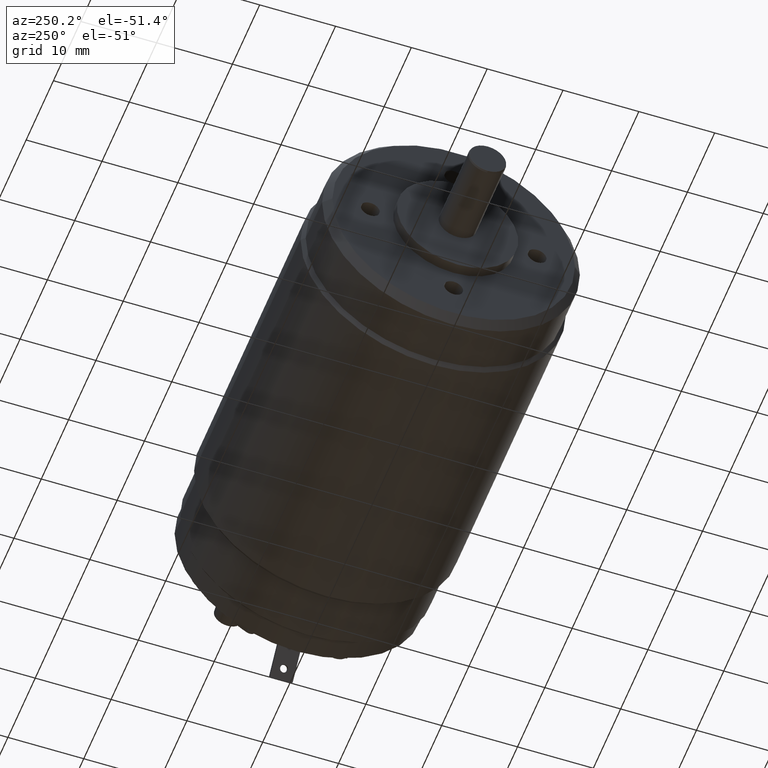
[diagram: clean part render]
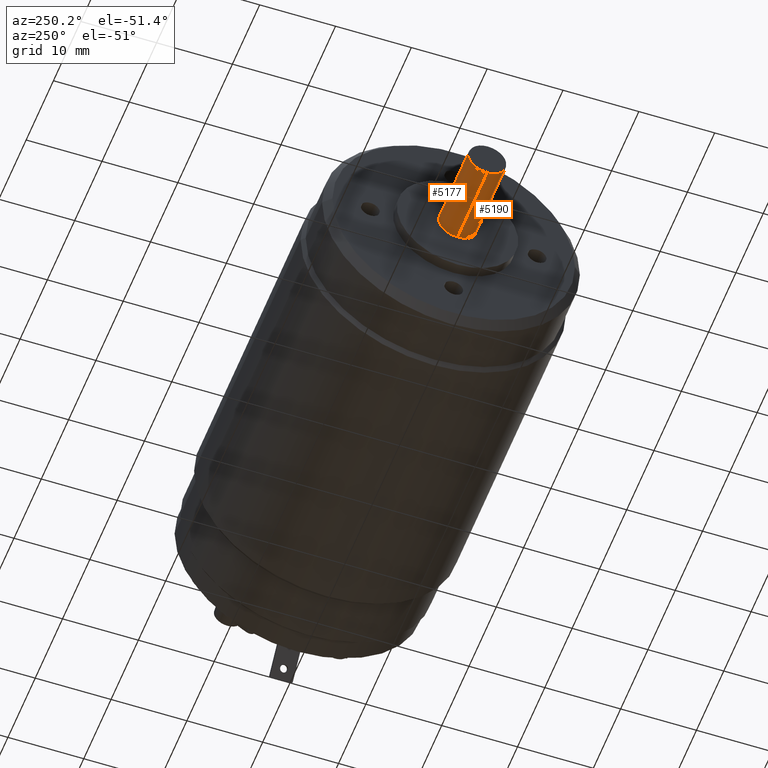
[diagram: same view with one multi-face feature highlighted, each face labeled with its STEP entity id]
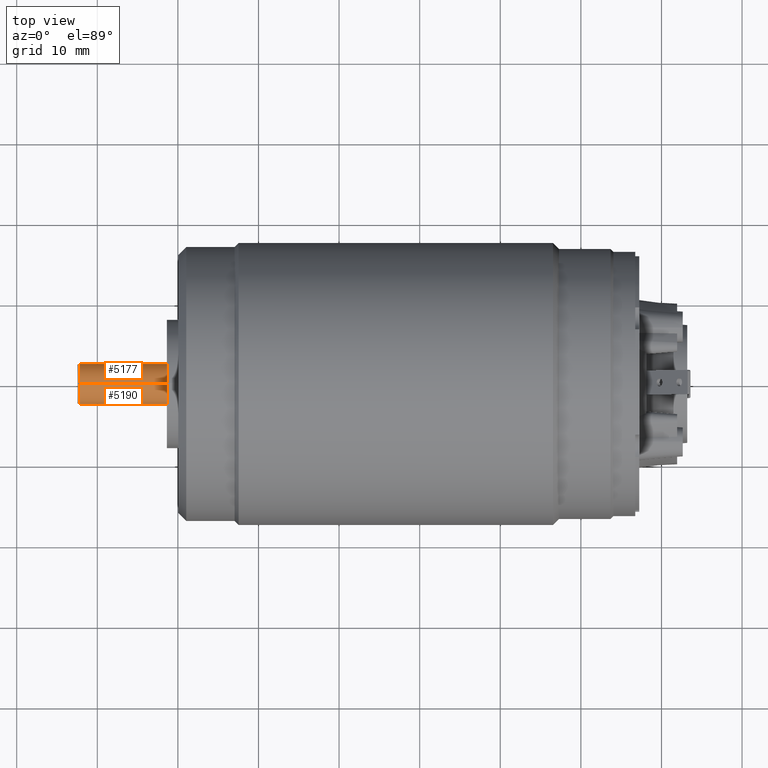
[diagram: same view with one multi-face feature highlighted, each face labeled with its STEP entity id]
A machine part, auxiliary view. The highlighted faces form ONE feature: a constant-radius fillet chain: 2 tangent blend faces with common blend radius 2.5 mm. The faces share edges in the B-rep.
A second angle (top view) of the same feature is appended — it is thin or edge-on in the first view.
Their STEP definitions:
[1] entity #5190 (Cylinder):
#1256=CARTESIAN_POINT('',(-5.136E1,0.E0,0.E0));
#1257=DIRECTION('',(1.E0,0.E0,0.E0));
#1258=DIRECTION('',(0.E0,0.E0,1.E0));
#1259=AXIS2_PLACEMENT_3D('',#1256,#1257,#1258);
#1261=DIRECTION('',(1.E0,0.E0,0.E0));
#1262=VECTOR('',#1261,1.084E1);
#1263=CARTESIAN_POINT('',(-6.22E1,0.E0,2.5E0));
#1264=LINE('',#1263,#1262);
#1270=DIRECTION('',(1.E0,0.E0,0.E0));
#1271=VECTOR('',#1270,1.084E1);
#1272=CARTESIAN_POINT('',(-6.22E1,0.E0,-2.5E0));
#1273=LINE('',#1272,#1271);
#1274=CARTESIAN_POINT('',(-6.22E1,0.E0,0.E0));
#1275=DIRECTION('',(1.E0,0.E0,0.E0));
#1276=DIRECTION('',(0.E0,0.E0,1.E0));
#1277=AXIS2_PLACEMENT_3D('',#1274,#1275,#1276);
#3572=CARTESIAN_POINT('',(-6.22E1,0.E0,2.5E0));
#3573=VERTEX_POINT('',#3572);
#3574=CARTESIAN_POINT('',(-5.136E1,0.E0,2.5E0));
#3575=VERTEX_POINT('',#3574);
#3582=CARTESIAN_POINT('',(-6.22E1,0.E0,-2.5E0));
#3583=VERTEX_POINT('',#3582);
#3584=CARTESIAN_POINT('',(-5.136E1,0.E0,-2.5E0));
#3585=VERTEX_POINT('',#3584);
#5178=CARTESIAN_POINT('',(-6.3085E1,0.E0,0.E0));
#5179=DIRECTION('',(1.E0,0.E0,0.E0));
#5180=DIRECTION('',(0.E0,0.E0,1.E0));
#5181=AXIS2_PLACEMENT_3D('',#5178,#5179,#5180);
#5182=CYLINDRICAL_SURFACE('',#5181,2.5E0);
#5183=ORIENTED_EDGE('',*,*,#5168,.T.);
#5184=ORIENTED_EDGE('',*,*,#5158,.T.);
#5185=ORIENTED_EDGE('',*,*,#5172,.F.);
#5187=ORIENTED_EDGE('',*,*,#5186,.F.);
#5188=EDGE_LOOP('',(#5183,#5184,#5185,#5187));
#5189=FACE_OUTER_BOUND('',#5188,.F.);
#5190=ADVANCED_FACE('',(#5189),#5182,.T.);
#1260=CIRCLE('',#1259,2.5E0);
#1278=CIRCLE('',#1277,2.5E0);
#5158=EDGE_CURVE('',#3575,#3585,#1260,.T.);
#5168=EDGE_CURVE('',#3573,#3575,#1264,.T.);
#5172=EDGE_CURVE('',#3583,#3585,#1273,.T.);
#5186=EDGE_CURVE('',#3573,#3583,#1278,.T.);
[2] entity #5177 (Cylinder):
#1251=CARTESIAN_POINT('',(-5.136E1,0.E0,0.E0));
#1252=DIRECTION('',(-1.E0,0.E0,0.E0));
#1253=DIRECTION('',(0.E0,0.E0,1.E0));
#1254=AXIS2_PLACEMENT_3D('',#1251,#1252,#1253);
#1261=DIRECTION('',(1.E0,0.E0,0.E0));
#1262=VECTOR('',#1261,1.084E1);
#1263=CARTESIAN_POINT('',(-6.22E1,0.E0,2.5E0));
#1264=LINE('',#1263,#1262);
#1265=CARTESIAN_POINT('',(-6.22E1,0.E0,0.E0));
#1266=DIRECTION('',(-1.E0,0.E0,0.E0));
#1267=DIRECTION('',(0.E0,0.E0,1.E0));
#1268=AXIS2_PLACEMENT_3D('',#1265,#1266,#1267);
#1270=DIRECTION('',(1.E0,0.E0,0.E0));
#1271=VECTOR('',#1270,1.084E1);
#1272=CARTESIAN_POINT('',(-6.22E1,0.E0,-2.5E0));
#1273=LINE('',#1272,#1271);
#3572=CARTESIAN_POINT('',(-6.22E1,0.E0,2.5E0));
#3573=VERTEX_POINT('',#3572);
#3574=CARTESIAN_POINT('',(-5.136E1,0.E0,2.5E0));
#3575=VERTEX_POINT('',#3574);
#3582=CARTESIAN_POINT('',(-6.22E1,0.E0,-2.5E0));
#3583=VERTEX_POINT('',#3582);
#3584=CARTESIAN_POINT('',(-5.136E1,0.E0,-2.5E0));
#3585=VERTEX_POINT('',#3584);
#5163=CARTESIAN_POINT('',(-6.3085E1,0.E0,0.E0));
#5164=DIRECTION('',(1.E0,0.E0,0.E0));
#5165=DIRECTION('',(0.E0,0.E0,1.E0));
#5166=AXIS2_PLACEMENT_3D('',#5163,#5164,#5165);
#5167=CYLINDRICAL_SURFACE('',#5166,2.5E0);
#5169=ORIENTED_EDGE('',*,*,#5168,.F.);
#5171=ORIENTED_EDGE('',*,*,#5170,.T.);
#5173=ORIENTED_EDGE('',*,*,#5172,.T.);
#5174=ORIENTED_EDGE('',*,*,#5156,.F.);
#5175=EDGE_LOOP('',(#5169,#5171,#5173,#5174));
#5176=FACE_OUTER_BOUND('',#5175,.F.);
#5177=ADVANCED_FACE('',(#5176),#5167,.T.);
#1255=CIRCLE('',#1254,2.5E0);
#1269=CIRCLE('',#1268,2.5E0);
#5156=EDGE_CURVE('',#3575,#3585,#1255,.T.);
#5168=EDGE_CURVE('',#3573,#3575,#1264,.T.);
#5170=EDGE_CURVE('',#3573,#3583,#1269,.T.);
#5172=EDGE_CURVE('',#3583,#3585,#1273,.T.);